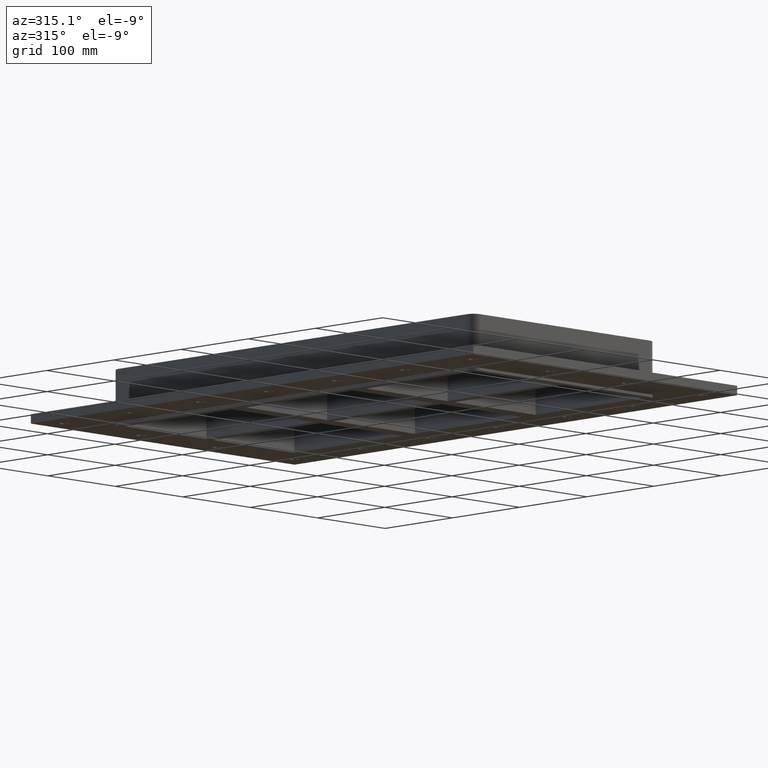
[diagram: clean part render]
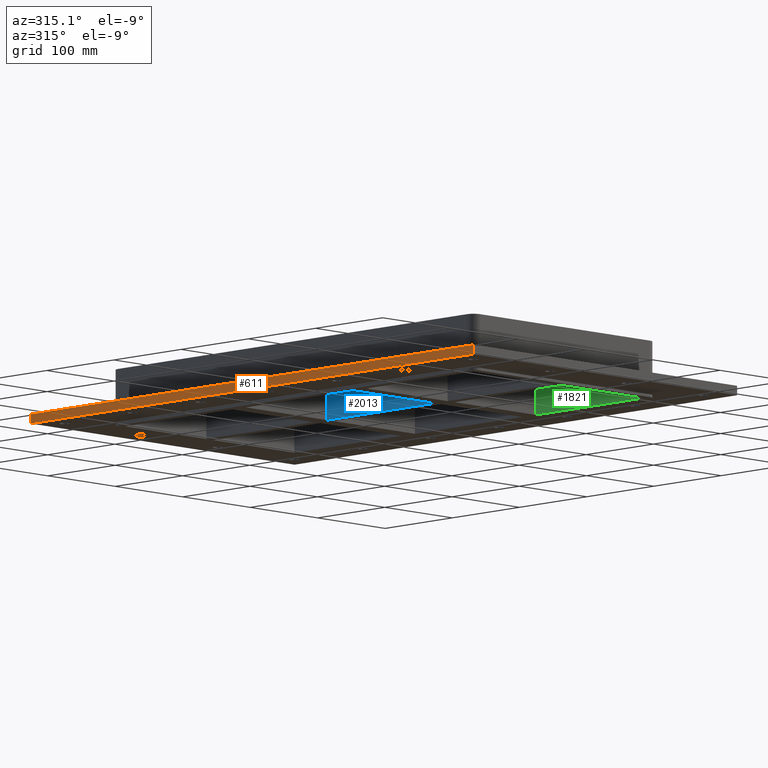
[diagram: same view with three faces highlighted in distinct colors, each labeled with its STEP entity id]
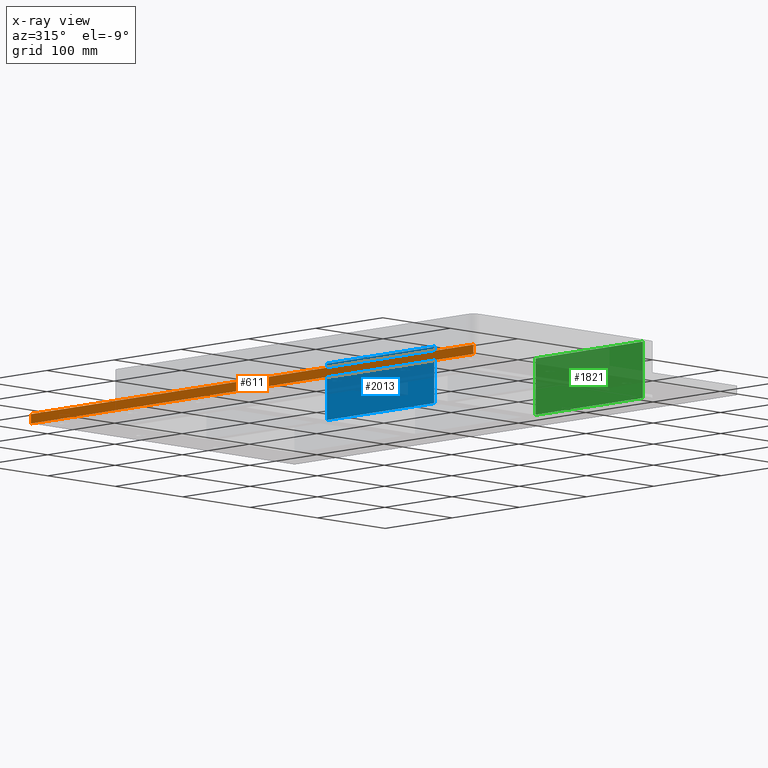
[diagram: x-ray of the same camera — body ghosted, the three highlighted faces saturated]
A machine part, auxiliary view with three faces highlighted in distinct colors.
The next image is the same camera in x-ray (body ghosted, the three faces saturated) — at least one of them is partly hidden behind the body in this view.
Their STEP definitions:

[orange] entity #611 — the highlighted planar face has unit normal (-1, 0, 0).
#572=CARTESIAN_POINT('',(-195.50000000000006,329.25,-27.0));
#573=DIRECTION('',(-1.0,0.0,0.0));
#574=DIRECTION('',(0.0,-1.0,0.0));
#575=AXIS2_PLACEMENT_3D('',#572,#573,#574);
#576=PLANE('',#575);
#577=CARTESIAN_POINT('',(-195.49999999999997,-329.25000000000011,-27.0));
#578=VERTEX_POINT('',#577);
#579=CARTESIAN_POINT('',(-195.50000000000006,329.25,-27.0));
#580=VERTEX_POINT('',#579);
#581=CARTESIAN_POINT('',(-195.49999999999997,-329.25000000000011,-27.0));
#582=DIRECTION('',(0.0,1.0,0.0));
#583=VECTOR('',#582,658.50000000000011);
#584=LINE('',#581,#583);
#585=EDGE_CURVE('',#578,#580,#584,.T.);
#586=ORIENTED_EDGE('',*,*,#585,.F.);
#587=CARTESIAN_POINT('',(-195.49999999999997,-329.25000000000011,-17.0));
#588=VERTEX_POINT('',#587);
#589=CARTESIAN_POINT('',(-195.49999999999997,-329.25000000000011,-27.0));
#590=DIRECTION('',(0.0,0.0,1.0));
#591=VECTOR('',#590,10.0);
#592=LINE('',#589,#591);
#593=EDGE_CURVE('',#578,#588,#592,.T.);
#594=ORIENTED_EDGE('',*,*,#593,.T.);
#595=CARTESIAN_POINT('',(-195.50000000000006,329.24999999999989,-17.0));
#596=VERTEX_POINT('',#595);
#597=CARTESIAN_POINT('',(-195.50000000000006,329.25,-17.0));
#598=DIRECTION('',(0.0,-1.0,0.0));
#599=VECTOR('',#598,658.50000000000011);
#600=LINE('',#597,#599);
#601=EDGE_CURVE('',#596,#588,#600,.T.);
#602=ORIENTED_EDGE('',*,*,#601,.F.);
#603=CARTESIAN_POINT('',(-195.50000000000006,329.25,-27.0));
#604=DIRECTION('',(0.0,0.0,1.0));
#605=VECTOR('',#604,10.0);
#606=LINE('',#603,#605);
#607=EDGE_CURVE('',#580,#596,#606,.T.);
#608=ORIENTED_EDGE('',*,*,#607,.F.);
#609=EDGE_LOOP('',(#586,#594,#602,#608));
#610=FACE_OUTER_BOUND('',#609,.T.);
#611=ADVANCED_FACE('',(#610),#576,.T.);

[blue] entity #2013 — the highlighted planar face has unit normal (1, 0, 0).
#1384=CARTESIAN_POINT('',(-4.999999999999947,-79.749999999999915,-30.0));
#1385=VERTEX_POINT('',#1384);
#1392=CARTESIAN_POINT('',(-4.999999999999973,79.750000000000099,-30.0));
#1393=VERTEX_POINT('',#1392);
#1394=CARTESIAN_POINT('',(-4.999999999999947,-79.749999999999915,-30.0));
#1395=DIRECTION('',(0.0,1.0,0.0));
#1396=VECTOR('',#1395,159.50000000000003);
#1397=LINE('',#1394,#1396);
#1398=EDGE_CURVE('',#1385,#1393,#1397,.T.);
#1973=CARTESIAN_POINT('',(-4.999999999999947,-79.749999999999915,30.0));
#1974=VERTEX_POINT('',#1973);
#1981=CARTESIAN_POINT('',(-4.999999999999947,-79.749999999999915,30.0));
#1982=DIRECTION('',(0.0,0.0,-1.0));
#1983=VECTOR('',#1982,60.0);
#1984=LINE('',#1981,#1983);
#1985=EDGE_CURVE('',#1974,#1385,#1984,.T.);
#1990=CARTESIAN_POINT('',(-4.999999999999973,79.750000000000099,30.0));
#1991=DIRECTION('',(1.0,0.0,0.0));
#1992=DIRECTION('',(0.0,-1.0,0.0));
#1993=AXIS2_PLACEMENT_3D('',#1990,#1991,#1992);
#1994=PLANE('',#1993);
#1995=ORIENTED_EDGE('',*,*,#1398,.F.);
#1996=ORIENTED_EDGE('',*,*,#1985,.F.);
#1997=CARTESIAN_POINT('',(-4.999999999999973,79.750000000000099,30.0));
#1998=VERTEX_POINT('',#1997);
#1999=CARTESIAN_POINT('',(-4.999999999999973,79.750000000000114,30.0));
#2000=DIRECTION('',(0.0,-1.0,0.0));
#2001=VECTOR('',#2000,159.50000000000003);
#2002=LINE('',#1999,#2001);
#2003=EDGE_CURVE('',#1998,#1974,#2002,.T.);
#2004=ORIENTED_EDGE('',*,*,#2003,.F.);
#2005=CARTESIAN_POINT('',(-4.999999999999973,79.750000000000099,30.0));
#2006=DIRECTION('',(0.0,0.0,-1.0));
#2007=VECTOR('',#2006,60.0);
#2008=LINE('',#2005,#2007);
#2009=EDGE_CURVE('',#1998,#1393,#2008,.T.);
#2010=ORIENTED_EDGE('',*,*,#2009,.T.);
#2011=EDGE_LOOP('',(#1995,#1996,#2004,#2010));
#2012=FACE_OUTER_BOUND('',#2011,.T.);
#2013=ADVANCED_FACE('',(#2012),#1994,.F.);

[green] entity #1821 — the highlighted planar face has unit normal (1, 0, 0).
#1316=CARTESIAN_POINT('',(125.50000000000011,-259.24999999999989,-30.0));
#1317=VERTEX_POINT('',#1316);
#1324=CARTESIAN_POINT('',(125.5000000000001,-99.749999999999915,-30.0));
#1325=VERTEX_POINT('',#1324);
#1326=CARTESIAN_POINT('',(125.50000000000011,-259.24999999999989,-30.0));
#1327=DIRECTION('',(0.0,1.0,0.0));
#1328=VECTOR('',#1327,159.5);
#1329=LINE('',#1326,#1328);
#1330=EDGE_CURVE('',#1317,#1325,#1329,.T.);
#1781=CARTESIAN_POINT('',(125.50000000000011,-259.24999999999989,30.0));
#1782=VERTEX_POINT('',#1781);
#1789=CARTESIAN_POINT('',(125.50000000000011,-259.24999999999989,30.0));
#1790=DIRECTION('',(0.0,0.0,-1.0));
#1791=VECTOR('',#1790,60.0);
#1792=LINE('',#1789,#1791);
#1793=EDGE_CURVE('',#1782,#1317,#1792,.T.);
#1798=CARTESIAN_POINT('',(125.5000000000001,-99.749999999999915,30.0));
#1799=DIRECTION('',(1.0,0.0,0.0));
#1800=DIRECTION('',(0.0,-1.0,0.0));
#1801=AXIS2_PLACEMENT_3D('',#1798,#1799,#1800);
#1802=PLANE('',#1801);
#1803=ORIENTED_EDGE('',*,*,#1330,.F.);
#1804=ORIENTED_EDGE('',*,*,#1793,.F.);
#1805=CARTESIAN_POINT('',(125.5000000000001,-99.749999999999915,30.0));
#1806=VERTEX_POINT('',#1805);
#1807=CARTESIAN_POINT('',(125.5000000000001,-99.749999999999901,30.0));
#1808=DIRECTION('',(0.0,-1.0,0.0));
#1809=VECTOR('',#1808,159.5);
#1810=LINE('',#1807,#1809);
#1811=EDGE_CURVE('',#1806,#1782,#1810,.T.);
#1812=ORIENTED_EDGE('',*,*,#1811,.F.);
#1813=CARTESIAN_POINT('',(125.5000000000001,-99.749999999999915,30.0));
#1814=DIRECTION('',(0.0,0.0,-1.0));
#1815=VECTOR('',#1814,60.0);
#1816=LINE('',#1813,#1815);
#1817=EDGE_CURVE('',#1806,#1325,#1816,.T.);
#1818=ORIENTED_EDGE('',*,*,#1817,.T.);
#1819=EDGE_LOOP('',(#1803,#1804,#1812,#1818));
#1820=FACE_OUTER_BOUND('',#1819,.T.);
#1821=ADVANCED_FACE('',(#1820),#1802,.F.);